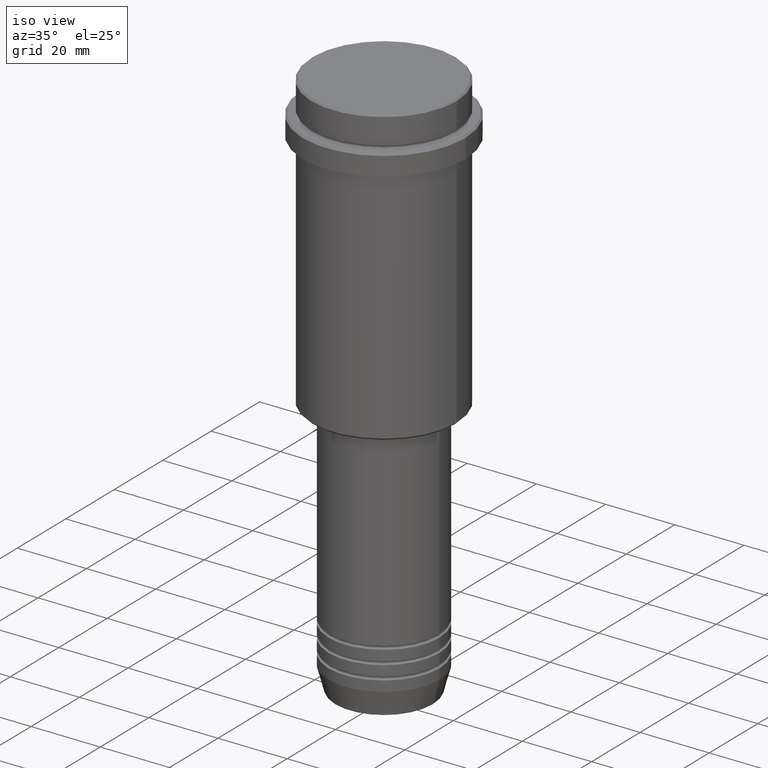
[diagram: clean part render]
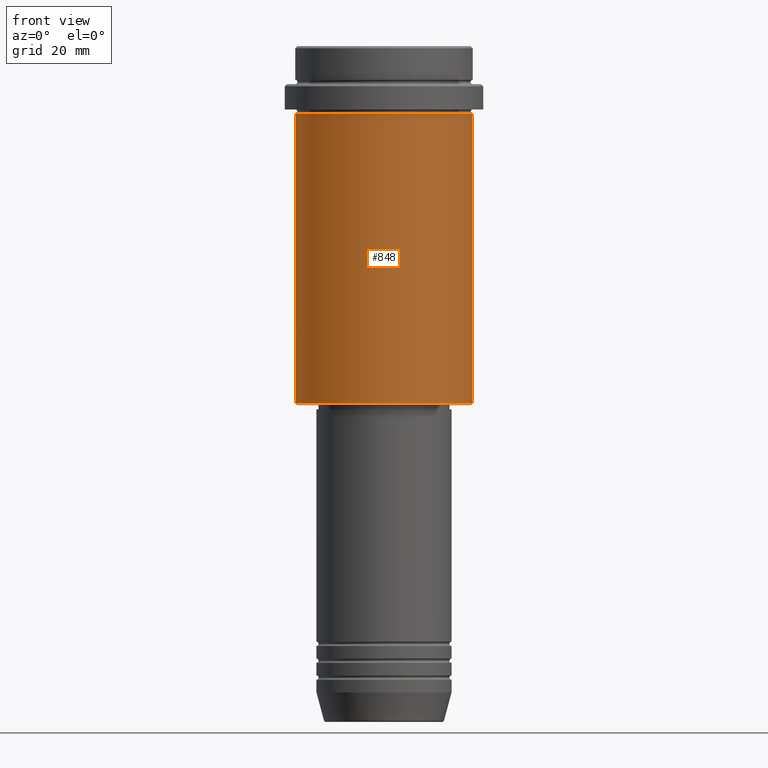
[diagram: tour spotlight — one face highlighted and labeled with its STEP entity id]
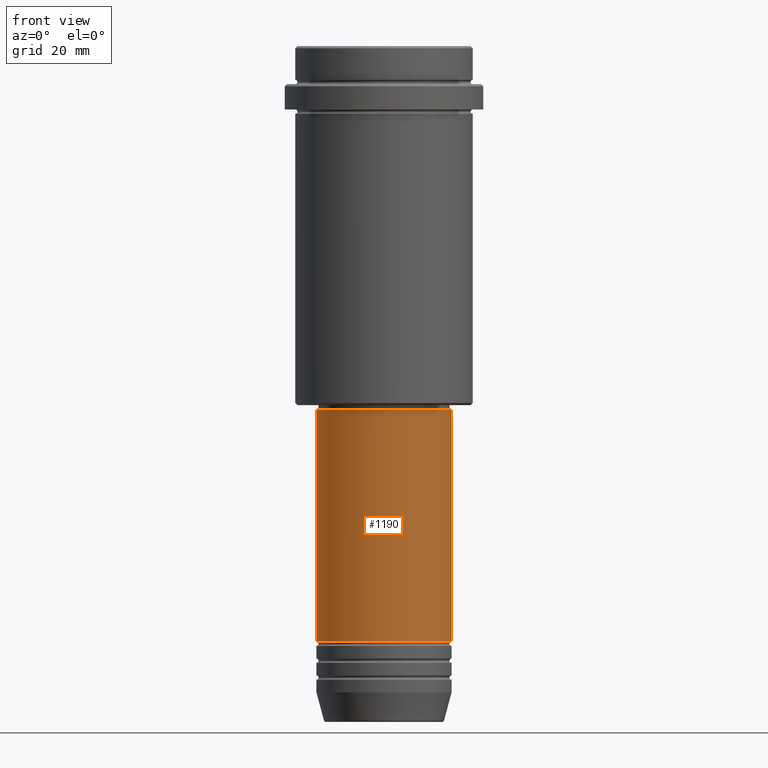
[diagram: tour spotlight — one face highlighted and labeled with its STEP entity id]
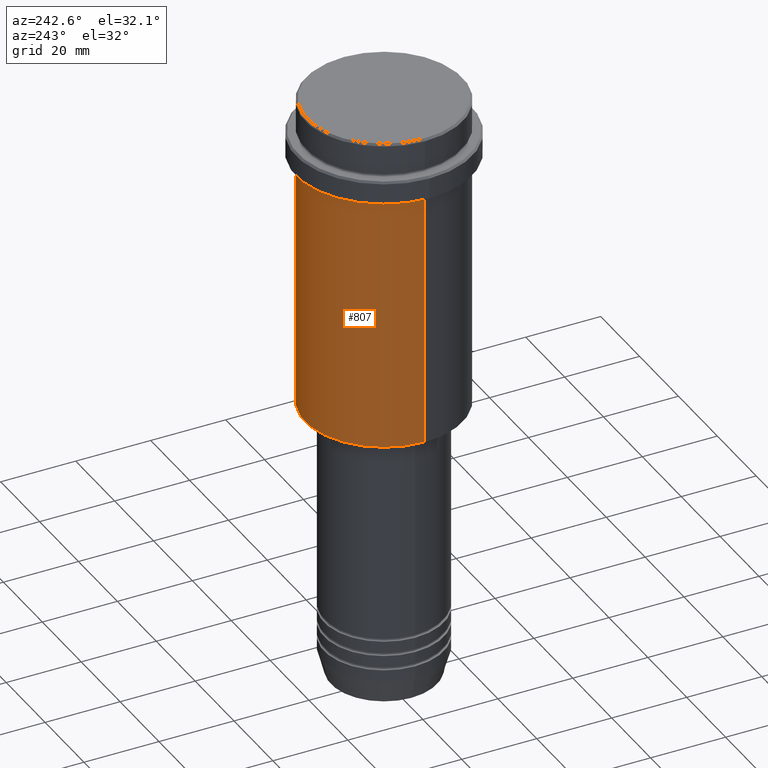
[diagram: tour spotlight — one face highlighted and labeled with its STEP entity id]
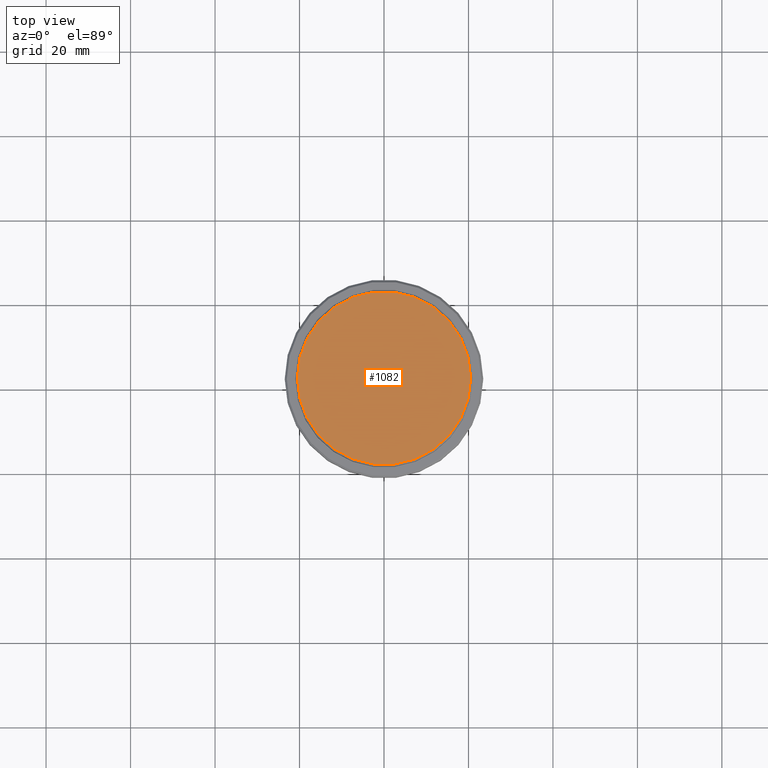
[diagram: tour spotlight — one face highlighted and labeled with its STEP entity id]
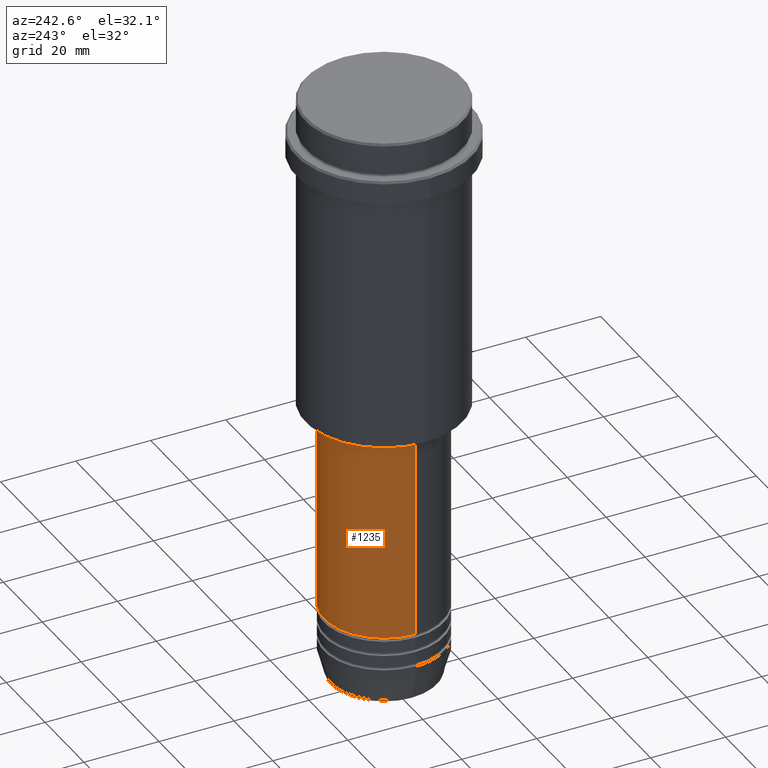
[diagram: tour spotlight — one face highlighted and labeled with its STEP entity id]
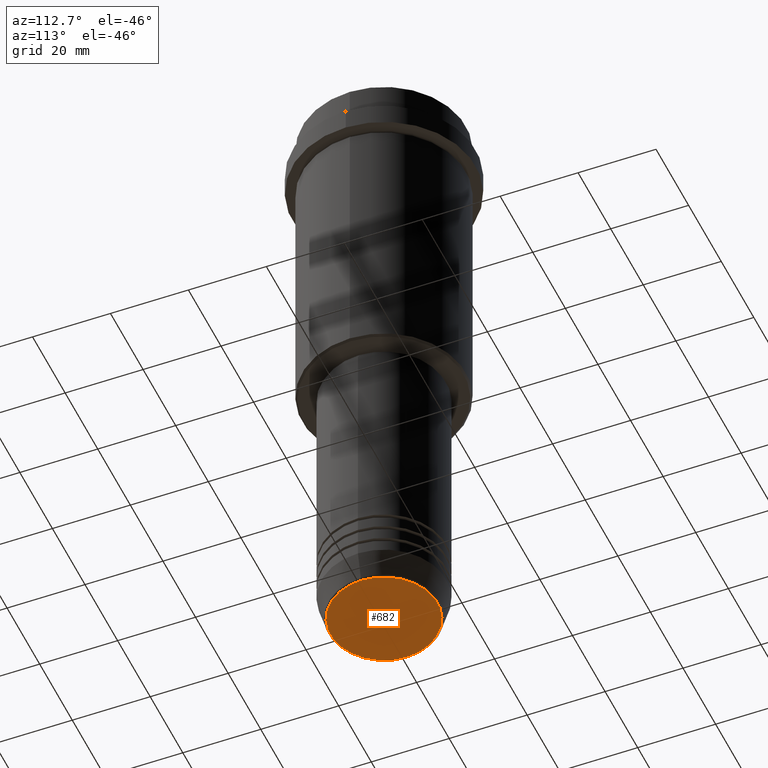
[diagram: tour spotlight — one face highlighted and labeled with its STEP entity id]
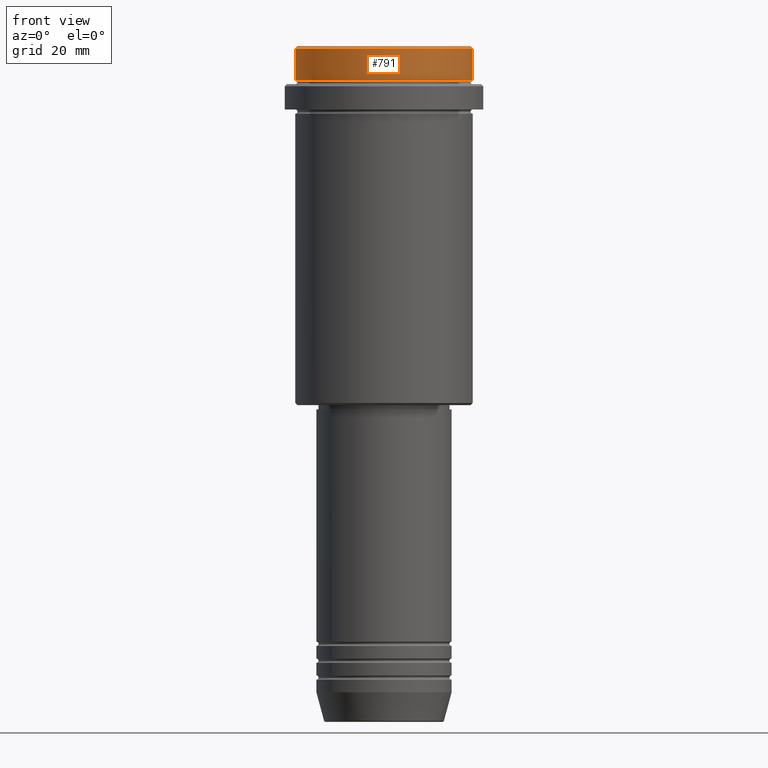
[diagram: tour spotlight — one face highlighted and labeled with its STEP entity id]
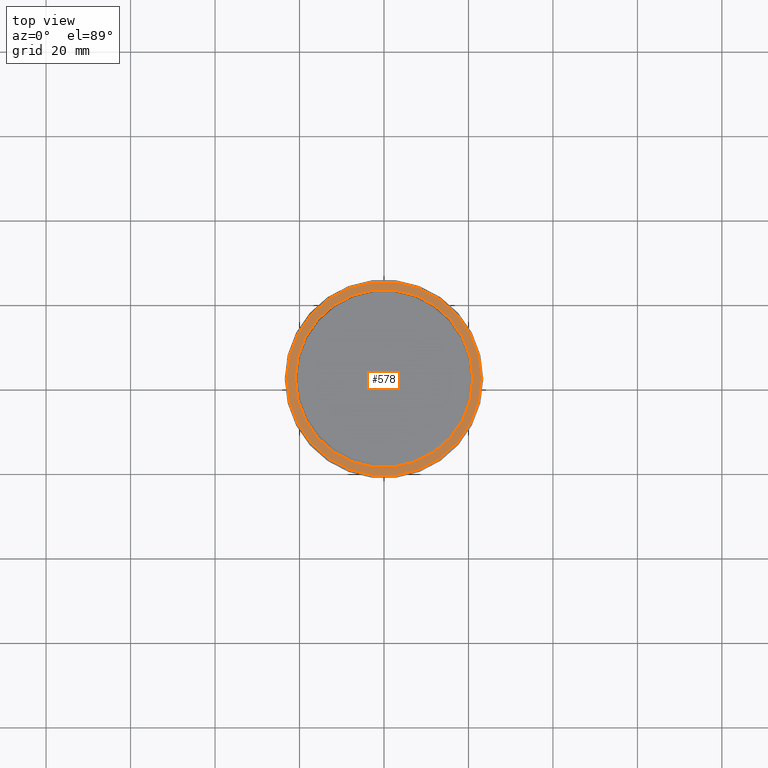
[diagram: tour spotlight — one face highlighted and labeled with its STEP entity id]
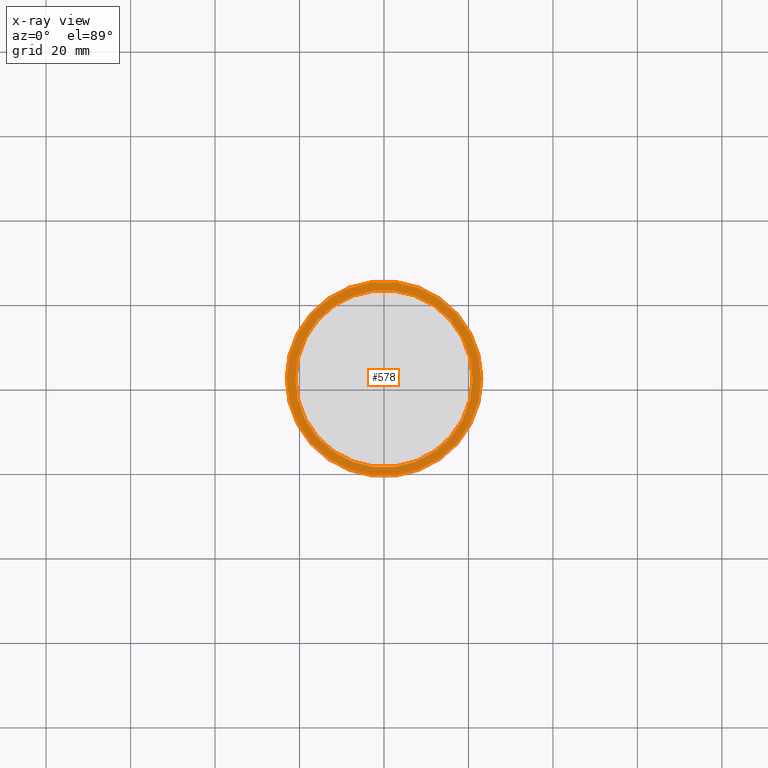
[diagram: x-ray of the same camera — body ghosted, this tour face saturated]
A machine part: a face-by-face anatomy tour. The part has 52 B-rep faces; the first image is the clean iso view, then the 8 largest visible faces are spotlighted one at a time (largest first), each with its STEP entity span.

Face 1 — front view, entity #848. In plain terms, the highlighted cylindrical surface (partial cylindrical patch) has radius 21 mm, axis along (-0, -0, 1).
Definition (entity closure, byte-faithful):
#25 = EDGE_CURVE ( 'NONE', #793, #684, #1074, .T. ) ;
#150 = CIRCLE ( 'NONE', #466, 21.00000000000000000 ) ;
#162 = ORIENTED_EDGE ( 'NONE', *, *, #1260, .F. ) ;
#167 = ORIENTED_EDGE ( 'NONE', *, *, #432, .F. ) ;
#170 = DIRECTION ( 'NONE',  ( -0.000000000000000000, -0.000000000000000000, 1.000000000000000000 ) ) ;
#178 = DIRECTION ( 'NONE',  ( -0.000000000000000000, -0.000000000000000000, 1.000000000000000000 ) ) ;
#199 = DIRECTION ( 'NONE',  ( 1.000000000000000000, 0.000000000000000000, 0.000000000000000000 ) ) ;
#242 = AXIS2_PLACEMENT_3D ( 'NONE', #801, #379, #384 ) ;
#301 = DIRECTION ( 'NONE',  ( -0.000000000000000000, -0.000000000000000000, 1.000000000000000000 ) ) ;
#353 = VECTOR ( 'NONE', #170, 1000.000000000000000 ) ;
#379 = DIRECTION ( 'NONE',  ( -0.000000000000000000, -0.000000000000000000, 1.000000000000000000 ) ) ;
#384 = DIRECTION ( 'NONE',  ( -1.000000000000000000, 0.000000000000000000, 0.000000000000000000 ) ) ;
#403 = DIRECTION ( 'NONE',  ( 1.000000000000000000, 0.000000000000000000, 0.000000000000000000 ) ) ;
#432 = EDGE_CURVE ( 'NONE', #1350, #1030, #526, .T. ) ;
#466 = AXIS2_PLACEMENT_3D ( 'NONE', #1282, #178, #199 ) ;
#522 = CARTESIAN_POINT ( 'NONE',  ( -21.00000000000000000, 2.571758278209441661E-15, -84.50000000000001421 ) ) ;
#526 = LINE ( 'NONE', #1280, #642 ) ;
#642 = VECTOR ( 'NONE', #301, 1000.000000000000000 ) ;
#684 = VERTEX_POINT ( 'NONE', #1331 ) ;
#718 = CARTESIAN_POINT ( 'NONE',  ( 0.000000000000000000, 0.000000000000000000, 0.000000000000000000 ) ) ;
#750 = EDGE_CURVE ( 'NONE', #1350, #793, #1220, .T. ) ;
#793 = VERTEX_POINT ( 'NONE', #1340 ) ;
#794 = EDGE_LOOP ( 'NONE', ( #167, #1270, #1099, #162 ) ) ;
#801 = CARTESIAN_POINT ( 'NONE',  ( 0.000000000000000000, 0.000000000000000000, -84.50000000000001421 ) ) ;
#825 = DIRECTION ( 'NONE',  ( -0.000000000000000000, -0.000000000000000000, 1.000000000000000000 ) ) ;
#829 = AXIS2_PLACEMENT_3D ( 'NONE', #718, #825, #403 ) ;
#848 = ADVANCED_FACE ( 'NONE', ( #940 ), #1185, .T. ) ;
#940 = FACE_OUTER_BOUND ( 'NONE', #794, .T. ) ;
#982 = CARTESIAN_POINT ( 'NONE',  ( -21.00000000000000000, 2.571758278209441661E-15, -16.00000000000000355 ) ) ;
#1030 = VERTEX_POINT ( 'NONE', #982 ) ;
#1074 = LINE ( 'NONE', #1188, #353 ) ;
#1099 = ORIENTED_EDGE ( 'NONE', *, *, #25, .T. ) ;
#1185 = CYLINDRICAL_SURFACE ( 'NONE', #829, 21.00000000000000000 ) ;
#1188 = CARTESIAN_POINT ( 'NONE',  ( 21.00000000000000000, 0.000000000000000000, 0.000000000000000000 ) ) ;
#1220 = CIRCLE ( 'NONE', #242, 21.00000000000000000 ) ;
#1260 = EDGE_CURVE ( 'NONE', #1030, #684, #150, .T. ) ;
#1270 = ORIENTED_EDGE ( 'NONE', *, *, #750, .T. ) ;
#1280 = CARTESIAN_POINT ( 'NONE',  ( -21.00000000000000000, 2.571758278209441661E-15, 0.000000000000000000 ) ) ;
#1282 = CARTESIAN_POINT ( 'NONE',  ( 0.000000000000000000, 0.000000000000000000, -16.00000000000000355 ) ) ;
#1331 = CARTESIAN_POINT ( 'NONE',  ( 21.00000000000000000, 0.000000000000000000, -16.00000000000000355 ) ) ;
#1340 = CARTESIAN_POINT ( 'NONE',  ( 21.00000000000000000, 0.000000000000000000, -84.50000000000001421 ) ) ;
#1350 = VERTEX_POINT ( 'NONE', #522 ) ;

Face 2 — front view, entity #1190. In plain terms, the highlighted cylindrical surface (partial cylindrical patch) has radius 16 mm, axis along (-0, -0, 1).
Definition (entity closure, byte-faithful):
#10 = CIRCLE ( 'NONE', #641, 16.00000000000000000 ) ;
#37 = VECTOR ( 'NONE', #142, 1000.000000000000000 ) ;
#138 = EDGE_CURVE ( 'NONE', #1416, #318, #674, .T. ) ;
#142 = DIRECTION ( 'NONE',  ( -0.000000000000000000, -0.000000000000000000, 1.000000000000000000 ) ) ;
#144 = EDGE_CURVE ( 'NONE', #1416, #1068, #10, .T. ) ;
#147 = CIRCLE ( 'NONE', #1062, 16.00000000000000355 ) ;
#169 = VERTEX_POINT ( 'NONE', #431 ) ;
#195 = AXIS2_PLACEMENT_3D ( 'NONE', #1357, #1256, #253 ) ;
#248 = CARTESIAN_POINT ( 'NONE',  ( 16.00000000000000000, 0.000000000000000000, -140.9999999999999147 ) ) ;
#253 = DIRECTION ( 'NONE',  ( 1.000000000000000000, 0.000000000000000000, 0.000000000000000000 ) ) ;
#302 = EDGE_CURVE ( 'NONE', #318, #169, #147, .T. ) ;
#318 = VERTEX_POINT ( 'NONE', #920 ) ;
#383 = CYLINDRICAL_SURFACE ( 'NONE', #195, 16.00000000000000000 ) ;
#431 = CARTESIAN_POINT ( 'NONE',  ( 16.00000000000000355, 0.000000000000000000, -86.00000000000000000 ) ) ;
#433 = VECTOR ( 'NONE', #560, 1000.000000000000000 ) ;
#497 = DIRECTION ( 'NONE',  ( 1.000000000000000000, 0.000000000000000000, 0.000000000000000000 ) ) ;
#560 = DIRECTION ( 'NONE',  ( -0.000000000000000000, -0.000000000000000000, 1.000000000000000000 ) ) ;
#573 = ORIENTED_EDGE ( 'NONE', *, *, #302, .F. ) ;
#623 = ORIENTED_EDGE ( 'NONE', *, *, #144, .T. ) ;
#641 = AXIS2_PLACEMENT_3D ( 'NONE', #984, #772, #1210 ) ;
#674 = LINE ( 'NONE', #1008, #433 ) ;
#772 = DIRECTION ( 'NONE',  ( -0.000000000000000000, -0.000000000000000000, 1.000000000000000000 ) ) ;
#800 = CARTESIAN_POINT ( 'NONE',  ( 16.00000000000000000, 0.000000000000000000, 0.000000000000000000 ) ) ;
#843 = ORIENTED_EDGE ( 'NONE', *, *, #1158, .T. ) ;
#920 = CARTESIAN_POINT ( 'NONE',  ( -16.00000000000000355, 1.959434878635765526E-15, -86.00000000000000000 ) ) ;
#984 = CARTESIAN_POINT ( 'NONE',  ( 0.000000000000000000, 0.000000000000000000, -140.9999999999999147 ) ) ;
#1008 = CARTESIAN_POINT ( 'NONE',  ( -16.00000000000000000, 1.959434878635765131E-15, 0.000000000000000000 ) ) ;
#1024 = DIRECTION ( 'NONE',  ( -0.000000000000000000, -0.000000000000000000, 1.000000000000000000 ) ) ;
#1032 = LINE ( 'NONE', #800, #37 ) ;
#1062 = AXIS2_PLACEMENT_3D ( 'NONE', #1353, #1024, #497 ) ;
#1068 = VERTEX_POINT ( 'NONE', #248 ) ;
#1073 = EDGE_LOOP ( 'NONE', ( #1396, #623, #843, #573 ) ) ;
#1158 = EDGE_CURVE ( 'NONE', #1068, #169, #1032, .T. ) ;
#1190 = ADVANCED_FACE ( 'NONE', ( #1230 ), #383, .T. ) ;
#1205 = CARTESIAN_POINT ( 'NONE',  ( -16.00000000000000000, 1.959434878635765131E-15, -140.9999999999999147 ) ) ;
#1210 = DIRECTION ( 'NONE',  ( 1.000000000000000000, 0.000000000000000000, 0.000000000000000000 ) ) ;
#1230 = FACE_OUTER_BOUND ( 'NONE', #1073, .T. ) ;
#1256 = DIRECTION ( 'NONE',  ( -0.000000000000000000, -0.000000000000000000, 1.000000000000000000 ) ) ;
#1353 = CARTESIAN_POINT ( 'NONE',  ( 0.000000000000000000, 0.000000000000000000, -86.00000000000000000 ) ) ;
#1357 = CARTESIAN_POINT ( 'NONE',  ( 0.000000000000000000, 0.000000000000000000, 0.000000000000000000 ) ) ;
#1396 = ORIENTED_EDGE ( 'NONE', *, *, #138, .F. ) ;
#1416 = VERTEX_POINT ( 'NONE', #1205 ) ;

Face 3 — auxiliary view, entity #807. In plain terms, the highlighted cylindrical surface (partial cylindrical patch) has radius 21 mm, axis along (-0, -0, 1).
Definition (entity closure, byte-faithful):
#21 = CARTESIAN_POINT ( 'NONE',  ( 0.000000000000000000, 0.000000000000000000, -16.00000000000000355 ) ) ;
#25 = EDGE_CURVE ( 'NONE', #793, #684, #1074, .T. ) ;
#41 = CARTESIAN_POINT ( 'NONE',  ( 0.000000000000000000, 0.000000000000000000, -84.50000000000001421 ) ) ;
#52 = DIRECTION ( 'NONE',  ( -0.000000000000000000, -0.000000000000000000, 1.000000000000000000 ) ) ;
#86 = ORIENTED_EDGE ( 'NONE', *, *, #707, .T. ) ;
#104 = AXIS2_PLACEMENT_3D ( 'NONE', #927, #1021, #814 ) ;
#170 = DIRECTION ( 'NONE',  ( -0.000000000000000000, -0.000000000000000000, 1.000000000000000000 ) ) ;
#190 = CIRCLE ( 'NONE', #1291, 21.00000000000000000 ) ;
#254 = CYLINDRICAL_SURFACE ( 'NONE', #104, 21.00000000000000000 ) ;
#268 = DIRECTION ( 'NONE',  ( -1.000000000000000000, 0.000000000000000000, 0.000000000000000000 ) ) ;
#301 = DIRECTION ( 'NONE',  ( -0.000000000000000000, -0.000000000000000000, 1.000000000000000000 ) ) ;
#353 = VECTOR ( 'NONE', #170, 1000.000000000000000 ) ;
#355 = DIRECTION ( 'NONE',  ( 1.000000000000000000, 0.000000000000000000, 0.000000000000000000 ) ) ;
#394 = CIRCLE ( 'NONE', #1358, 21.00000000000000000 ) ;
#432 = EDGE_CURVE ( 'NONE', #1350, #1030, #526, .T. ) ;
#522 = CARTESIAN_POINT ( 'NONE',  ( -21.00000000000000000, 2.571758278209441661E-15, -84.50000000000001421 ) ) ;
#526 = LINE ( 'NONE', #1280, #642 ) ;
#627 = EDGE_CURVE ( 'NONE', #684, #1030, #394, .T. ) ;
#632 = EDGE_LOOP ( 'NONE', ( #86, #965, #902, #921 ) ) ;
#642 = VECTOR ( 'NONE', #301, 1000.000000000000000 ) ;
#684 = VERTEX_POINT ( 'NONE', #1331 ) ;
#707 = EDGE_CURVE ( 'NONE', #793, #1350, #190, .T. ) ;
#793 = VERTEX_POINT ( 'NONE', #1340 ) ;
#807 = ADVANCED_FACE ( 'NONE', ( #1033 ), #254, .T. ) ;
#814 = DIRECTION ( 'NONE',  ( 1.000000000000000000, 0.000000000000000000, 0.000000000000000000 ) ) ;
#902 = ORIENTED_EDGE ( 'NONE', *, *, #627, .F. ) ;
#921 = ORIENTED_EDGE ( 'NONE', *, *, #25, .F. ) ;
#927 = CARTESIAN_POINT ( 'NONE',  ( 0.000000000000000000, 0.000000000000000000, 0.000000000000000000 ) ) ;
#965 = ORIENTED_EDGE ( 'NONE', *, *, #432, .T. ) ;
#982 = CARTESIAN_POINT ( 'NONE',  ( -21.00000000000000000, 2.571758278209441661E-15, -16.00000000000000355 ) ) ;
#1021 = DIRECTION ( 'NONE',  ( -0.000000000000000000, -0.000000000000000000, 1.000000000000000000 ) ) ;
#1030 = VERTEX_POINT ( 'NONE', #982 ) ;
#1033 = FACE_OUTER_BOUND ( 'NONE', #632, .T. ) ;
#1074 = LINE ( 'NONE', #1188, #353 ) ;
#1095 = DIRECTION ( 'NONE',  ( -0.000000000000000000, -0.000000000000000000, 1.000000000000000000 ) ) ;
#1188 = CARTESIAN_POINT ( 'NONE',  ( 21.00000000000000000, 0.000000000000000000, 0.000000000000000000 ) ) ;
#1280 = CARTESIAN_POINT ( 'NONE',  ( -21.00000000000000000, 2.571758278209441661E-15, 0.000000000000000000 ) ) ;
#1291 = AXIS2_PLACEMENT_3D ( 'NONE', #41, #52, #268 ) ;
#1331 = CARTESIAN_POINT ( 'NONE',  ( 21.00000000000000000, 0.000000000000000000, -16.00000000000000355 ) ) ;
#1340 = CARTESIAN_POINT ( 'NONE',  ( 21.00000000000000000, 0.000000000000000000, -84.50000000000001421 ) ) ;
#1350 = VERTEX_POINT ( 'NONE', #522 ) ;
#1358 = AXIS2_PLACEMENT_3D ( 'NONE', #21, #1095, #355 ) ;

Face 4 — top view, entity #1082. In plain terms, the highlighted planar face has unit normal (0, -0, 1).
Definition (entity closure, byte-faithful):
#31 = CARTESIAN_POINT ( 'NONE',  ( 20.49999999999997513, 2.541142108230756691E-15, 0.000000000000000000 ) ) ;
#102 = AXIS2_PLACEMENT_3D ( 'NONE', #1203, #605, #816 ) ;
#158 = DIRECTION ( 'NONE',  ( 1.000000000000000000, 0.000000000000000000, 0.000000000000000000 ) ) ;
#229 = PLANE ( 'NONE',  #973 ) ;
#251 = EDGE_CURVE ( 'NONE', #446, #1175, #877, .T. ) ;
#263 = AXIS2_PLACEMENT_3D ( 'NONE', #366, #683, #158 ) ;
#344 = DIRECTION ( 'NONE',  ( 0.000000000000000000, -0.000000000000000000, 1.000000000000000000 ) ) ;
#366 = CARTESIAN_POINT ( 'NONE',  ( 0.000000000000000000, 0.000000000000000000, 0.000000000000000000 ) ) ;
#445 = FACE_OUTER_BOUND ( 'NONE', #819, .T. ) ;
#446 = VERTEX_POINT ( 'NONE', #1290 ) ;
#533 = CARTESIAN_POINT ( 'NONE',  ( 0.000000000000000000, 0.000000000000000000, 0.000000000000000000 ) ) ;
#605 = DIRECTION ( 'NONE',  ( -0.000000000000000000, -0.000000000000000000, 1.000000000000000000 ) ) ;
#683 = DIRECTION ( 'NONE',  ( -0.000000000000000000, -0.000000000000000000, 1.000000000000000000 ) ) ;
#723 = ORIENTED_EDGE ( 'NONE', *, *, #779, .T. ) ;
#779 = EDGE_CURVE ( 'NONE', #1175, #446, #1335, .T. ) ;
#816 = DIRECTION ( 'NONE',  ( 1.000000000000000000, 0.000000000000000000, 0.000000000000000000 ) ) ;
#819 = EDGE_LOOP ( 'NONE', ( #1277, #723 ) ) ;
#877 = CIRCLE ( 'NONE', #102, 20.49999999999997513 ) ;
#973 = AXIS2_PLACEMENT_3D ( 'NONE', #533, #344, #1303 ) ;
#1082 = ADVANCED_FACE ( 'NONE', ( #445 ), #229, .T. ) ;
#1175 = VERTEX_POINT ( 'NONE', #31 ) ;
#1203 = CARTESIAN_POINT ( 'NONE',  ( 0.000000000000000000, 0.000000000000000000, 0.000000000000000000 ) ) ;
#1277 = ORIENTED_EDGE ( 'NONE', *, *, #251, .T. ) ;
#1290 = CARTESIAN_POINT ( 'NONE',  ( -20.49999999999997513, 0.000000000000000000, 0.000000000000000000 ) ) ;
#1303 = DIRECTION ( 'NONE',  ( 1.000000000000000000, 0.000000000000000000, 0.000000000000000000 ) ) ;
#1335 = CIRCLE ( 'NONE', #263, 20.49999999999997513 ) ;

Face 5 — auxiliary view, entity #1235. In plain terms, the highlighted cylindrical surface (partial cylindrical patch) has radius 16 mm, axis along (-0, -0, 1).
Definition (entity closure, byte-faithful):
#37 = VECTOR ( 'NONE', #142, 1000.000000000000000 ) ;
#55 = AXIS2_PLACEMENT_3D ( 'NONE', #1333, #335, #790 ) ;
#138 = EDGE_CURVE ( 'NONE', #1416, #318, #674, .T. ) ;
#142 = DIRECTION ( 'NONE',  ( -0.000000000000000000, -0.000000000000000000, 1.000000000000000000 ) ) ;
#152 = FACE_OUTER_BOUND ( 'NONE', #1224, .T. ) ;
#169 = VERTEX_POINT ( 'NONE', #431 ) ;
#225 = EDGE_CURVE ( 'NONE', #169, #318, #1354, .T. ) ;
#248 = CARTESIAN_POINT ( 'NONE',  ( 16.00000000000000000, 0.000000000000000000, -140.9999999999999147 ) ) ;
#255 = CARTESIAN_POINT ( 'NONE',  ( 0.000000000000000000, 0.000000000000000000, -140.9999999999999147 ) ) ;
#318 = VERTEX_POINT ( 'NONE', #920 ) ;
#326 = EDGE_CURVE ( 'NONE', #1068, #1416, #529, .T. ) ;
#335 = DIRECTION ( 'NONE',  ( -0.000000000000000000, -0.000000000000000000, 1.000000000000000000 ) ) ;
#430 = ORIENTED_EDGE ( 'NONE', *, *, #1158, .F. ) ;
#431 = CARTESIAN_POINT ( 'NONE',  ( 16.00000000000000355, 0.000000000000000000, -86.00000000000000000 ) ) ;
#433 = VECTOR ( 'NONE', #560, 1000.000000000000000 ) ;
#457 = ORIENTED_EDGE ( 'NONE', *, *, #138, .T. ) ;
#482 = DIRECTION ( 'NONE',  ( 1.000000000000000000, 0.000000000000000000, 0.000000000000000000 ) ) ;
#494 = ORIENTED_EDGE ( 'NONE', *, *, #326, .T. ) ;
#529 = CIRCLE ( 'NONE', #1403, 16.00000000000000000 ) ;
#560 = DIRECTION ( 'NONE',  ( -0.000000000000000000, -0.000000000000000000, 1.000000000000000000 ) ) ;
#574 = DIRECTION ( 'NONE',  ( 1.000000000000000000, 0.000000000000000000, 0.000000000000000000 ) ) ;
#593 = CYLINDRICAL_SURFACE ( 'NONE', #811, 16.00000000000000000 ) ;
#674 = LINE ( 'NONE', #1008, #433 ) ;
#790 = DIRECTION ( 'NONE',  ( 1.000000000000000000, 0.000000000000000000, 0.000000000000000000 ) ) ;
#800 = CARTESIAN_POINT ( 'NONE',  ( 16.00000000000000000, 0.000000000000000000, 0.000000000000000000 ) ) ;
#811 = AXIS2_PLACEMENT_3D ( 'NONE', #1365, #918, #574 ) ;
#918 = DIRECTION ( 'NONE',  ( -0.000000000000000000, -0.000000000000000000, 1.000000000000000000 ) ) ;
#920 = CARTESIAN_POINT ( 'NONE',  ( -16.00000000000000355, 1.959434878635765526E-15, -86.00000000000000000 ) ) ;
#941 = DIRECTION ( 'NONE',  ( -0.000000000000000000, -0.000000000000000000, 1.000000000000000000 ) ) ;
#987 = ORIENTED_EDGE ( 'NONE', *, *, #225, .F. ) ;
#1008 = CARTESIAN_POINT ( 'NONE',  ( -16.00000000000000000, 1.959434878635765131E-15, 0.000000000000000000 ) ) ;
#1032 = LINE ( 'NONE', #800, #37 ) ;
#1068 = VERTEX_POINT ( 'NONE', #248 ) ;
#1158 = EDGE_CURVE ( 'NONE', #1068, #169, #1032, .T. ) ;
#1205 = CARTESIAN_POINT ( 'NONE',  ( -16.00000000000000000, 1.959434878635765131E-15, -140.9999999999999147 ) ) ;
#1224 = EDGE_LOOP ( 'NONE', ( #494, #457, #987, #430 ) ) ;
#1235 = ADVANCED_FACE ( 'NONE', ( #152 ), #593, .T. ) ;
#1333 = CARTESIAN_POINT ( 'NONE',  ( 0.000000000000000000, 0.000000000000000000, -86.00000000000000000 ) ) ;
#1354 = CIRCLE ( 'NONE', #55, 16.00000000000000355 ) ;
#1365 = CARTESIAN_POINT ( 'NONE',  ( 0.000000000000000000, 0.000000000000000000, 0.000000000000000000 ) ) ;
#1403 = AXIS2_PLACEMENT_3D ( 'NONE', #255, #941, #482 ) ;
#1416 = VERTEX_POINT ( 'NONE', #1205 ) ;

Face 6 — auxiliary view, entity #682. In plain terms, the highlighted planar face has unit normal (0, -0, 1).
Definition (entity closure, byte-faithful):
#26 = FACE_OUTER_BOUND ( 'NONE', #746, .T. ) ;
#59 = CARTESIAN_POINT ( 'NONE',  ( 0.000000000000000000, 0.000000000000000000, -160.0000000000000000 ) ) ;
#64 = DIRECTION ( 'NONE',  ( 0.000000000000000000, 0.000000000000000000, -1.000000000000000000 ) ) ;
#157 = DIRECTION ( 'NONE',  ( 1.000000000000000000, 0.000000000000000000, 0.000000000000000000 ) ) ;
#159 = CARTESIAN_POINT ( 'NONE',  ( 0.000000000000000000, 0.000000000000000000, -160.0000000000000000 ) ) ;
#184 = VERTEX_POINT ( 'NONE', #874 ) ;
#217 = CARTESIAN_POINT ( 'NONE',  ( 13.74069215899265828, 0.000000000000000000, -160.0000000000000000 ) ) ;
#224 = DIRECTION ( 'NONE',  ( 1.000000000000000000, 0.000000000000000000, 0.000000000000000000 ) ) ;
#380 = EDGE_CURVE ( 'NONE', #184, #633, #1262, .T. ) ;
#453 = PLANE ( 'NONE',  #645 ) ;
#563 = ORIENTED_EDGE ( 'NONE', *, *, #1147, .T. ) ;
#571 = DIRECTION ( 'NONE',  ( 0.000000000000000000, -0.000000000000000000, 1.000000000000000000 ) ) ;
#633 = VERTEX_POINT ( 'NONE', #217 ) ;
#645 = AXIS2_PLACEMENT_3D ( 'NONE', #898, #571, #224 ) ;
#682 = ADVANCED_FACE ( 'NONE', ( #26 ), #453, .F. ) ;
#703 = ORIENTED_EDGE ( 'NONE', *, *, #380, .T. ) ;
#746 = EDGE_LOOP ( 'NONE', ( #563, #703 ) ) ;
#874 = CARTESIAN_POINT ( 'NONE',  ( -13.74069215899265828, 1.712322416342415986E-15, -160.0000000000000000 ) ) ;
#898 = CARTESIAN_POINT ( 'NONE',  ( 0.000000000000000000, 0.000000000000000000, -160.0000000000000000 ) ) ;
#906 = CIRCLE ( 'NONE', #1267, 13.74069215899265828 ) ;
#1026 = DIRECTION ( 'NONE',  ( 0.000000000000000000, 0.000000000000000000, -1.000000000000000000 ) ) ;
#1044 = DIRECTION ( 'NONE',  ( 1.000000000000000000, 0.000000000000000000, 0.000000000000000000 ) ) ;
#1131 = AXIS2_PLACEMENT_3D ( 'NONE', #159, #64, #1044 ) ;
#1147 = EDGE_CURVE ( 'NONE', #633, #184, #906, .T. ) ;
#1262 = CIRCLE ( 'NONE', #1131, 13.74069215899265828 ) ;
#1267 = AXIS2_PLACEMENT_3D ( 'NONE', #59, #1026, #157 ) ;

Face 7 — front view, entity #791. In plain terms, the highlighted cylindrical surface (partial cylindrical patch) has radius 21 mm, axis along (-0, -0, 1).
Definition (entity closure, byte-faithful):
#71 = ORIENTED_EDGE ( 'NONE', *, *, #833, .F. ) ;
#72 = CARTESIAN_POINT ( 'NONE',  ( 0.000000000000000000, 0.000000000000000000, -0.5000000000000386358 ) ) ;
#130 = ORIENTED_EDGE ( 'NONE', *, *, #503, .T. ) ;
#143 = FACE_OUTER_BOUND ( 'NONE', #314, .T. ) ;
#182 = DIRECTION ( 'NONE',  ( -0.000000000000000000, -0.000000000000000000, 1.000000000000000000 ) ) ;
#187 = DIRECTION ( 'NONE',  ( -0.000000000000000000, -0.000000000000000000, 1.000000000000000000 ) ) ;
#216 = CIRCLE ( 'NONE', #240, 21.00000000000000000 ) ;
#240 = AXIS2_PLACEMENT_3D ( 'NONE', #72, #722, #966 ) ;
#259 = CARTESIAN_POINT ( 'NONE',  ( -21.00000000000000000, 2.571758278209441661E-15, 0.000000000000000000 ) ) ;
#314 = EDGE_LOOP ( 'NONE', ( #71, #130, #541, #1184 ) ) ;
#356 = AXIS2_PLACEMENT_3D ( 'NONE', #474, #796, #1236 ) ;
#411 = CIRCLE ( 'NONE', #1016, 21.00000000000000000 ) ;
#461 = CYLINDRICAL_SURFACE ( 'NONE', #356, 21.00000000000000000 ) ;
#462 = VERTEX_POINT ( 'NONE', #947 ) ;
#471 = EDGE_CURVE ( 'NONE', #937, #1410, #1414, .T. ) ;
#474 = CARTESIAN_POINT ( 'NONE',  ( 0.000000000000000000, 0.000000000000000000, 0.000000000000000000 ) ) ;
#478 = VERTEX_POINT ( 'NONE', #1268 ) ;
#488 = LINE ( 'NONE', #259, #530 ) ;
#500 = CARTESIAN_POINT ( 'NONE',  ( 21.00000000000000000, 0.000000000000000000, -7.999999999999998224 ) ) ;
#503 = EDGE_CURVE ( 'NONE', #462, #937, #411, .T. ) ;
#530 = VECTOR ( 'NONE', #690, 1000.000000000000000 ) ;
#541 = ORIENTED_EDGE ( 'NONE', *, *, #471, .T. ) ;
#690 = DIRECTION ( 'NONE',  ( -0.000000000000000000, -0.000000000000000000, 1.000000000000000000 ) ) ;
#722 = DIRECTION ( 'NONE',  ( 0.000000000000000000, 0.000000000000000000, -1.000000000000000000 ) ) ;
#725 = DIRECTION ( 'NONE',  ( 1.000000000000000000, 0.000000000000000000, 0.000000000000000000 ) ) ;
#791 = ADVANCED_FACE ( 'NONE', ( #143 ), #461, .T. ) ;
#796 = DIRECTION ( 'NONE',  ( -0.000000000000000000, -0.000000000000000000, 1.000000000000000000 ) ) ;
#833 = EDGE_CURVE ( 'NONE', #462, #478, #488, .T. ) ;
#863 = EDGE_CURVE ( 'NONE', #1410, #478, #216, .T. ) ;
#937 = VERTEX_POINT ( 'NONE', #500 ) ;
#947 = CARTESIAN_POINT ( 'NONE',  ( -21.00000000000000000, 2.571758278209441661E-15, -7.999999999999998224 ) ) ;
#966 = DIRECTION ( 'NONE',  ( 1.000000000000000000, 0.000000000000000000, 0.000000000000000000 ) ) ;
#1016 = AXIS2_PLACEMENT_3D ( 'NONE', #1187, #187, #725 ) ;
#1040 = VECTOR ( 'NONE', #182, 1000.000000000000000 ) ;
#1183 = CARTESIAN_POINT ( 'NONE',  ( 21.00000000000000000, 0.000000000000000000, -0.5000000000000386358 ) ) ;
#1184 = ORIENTED_EDGE ( 'NONE', *, *, #863, .T. ) ;
#1187 = CARTESIAN_POINT ( 'NONE',  ( 0.000000000000000000, 0.000000000000000000, -7.999999999999998224 ) ) ;
#1236 = DIRECTION ( 'NONE',  ( 1.000000000000000000, 0.000000000000000000, 0.000000000000000000 ) ) ;
#1268 = CARTESIAN_POINT ( 'NONE',  ( -21.00000000000000000, 2.571758278209441661E-15, -0.5000000000000386358 ) ) ;
#1385 = CARTESIAN_POINT ( 'NONE',  ( 21.00000000000000000, 0.000000000000000000, 0.000000000000000000 ) ) ;
#1410 = VERTEX_POINT ( 'NONE', #1183 ) ;
#1414 = LINE ( 'NONE', #1385, #1040 ) ;

Face 8 — top view, entity #578. An x-ray twin of the same camera follows (body ghosted, this face saturated) — the face is partly hidden behind the body. In plain terms, the highlighted planar face has unit normal (0, -0, 1).
Definition (entity closure, byte-faithful):
#57 = AXIS2_PLACEMENT_3D ( 'NONE', #589, #936, #1368 ) ;
#78 = CIRCLE ( 'NONE', #57, 20.99999999999999289 ) ;
#89 = VERTEX_POINT ( 'NONE', #1103 ) ;
#91 = ORIENTED_EDGE ( 'NONE', *, *, #300, .T. ) ;
#94 = DIRECTION ( 'NONE',  ( -0.000000000000000000, -0.000000000000000000, 1.000000000000000000 ) ) ;
#124 = FACE_BOUND ( 'NONE', #191, .T. ) ;
#132 = FACE_OUTER_BOUND ( 'NONE', #1344, .T. ) ;
#141 = ORIENTED_EDGE ( 'NONE', *, *, #1317, .T. ) ;
#183 = DIRECTION ( 'NONE',  ( 1.000000000000000000, 0.000000000000000000, 0.000000000000000000 ) ) ;
#191 = EDGE_LOOP ( 'NONE', ( #91, #1305 ) ) ;
#219 = CIRCLE ( 'NONE', #999, 22.99999999999999645 ) ;
#238 = DIRECTION ( 'NONE',  ( 0.000000000000000000, -0.000000000000000000, 1.000000000000000000 ) ) ;
#300 = EDGE_CURVE ( 'NONE', #752, #472, #437, .T. ) ;
#322 = DIRECTION ( 'NONE',  ( 1.000000000000000000, 0.000000000000000000, 0.000000000000000000 ) ) ;
#385 = EDGE_CURVE ( 'NONE', #472, #752, #78, .T. ) ;
#404 = CARTESIAN_POINT ( 'NONE',  ( -20.99999999999999289, 2.571758278209440872E-15, -9.000000000000000000 ) ) ;
#437 = CIRCLE ( 'NONE', #1312, 20.99999999999999289 ) ;
#472 = VERTEX_POINT ( 'NONE', #404 ) ;
#491 = DIRECTION ( 'NONE',  ( 0.000000000000000000, 0.000000000000000000, -1.000000000000000000 ) ) ;
#520 = ORIENTED_EDGE ( 'NONE', *, *, #602, .T. ) ;
#558 = DIRECTION ( 'NONE',  ( 1.000000000000000000, 0.000000000000000000, 0.000000000000000000 ) ) ;
#578 = ADVANCED_FACE ( 'NONE', ( #132, #124 ), #652, .T. ) ;
#589 = CARTESIAN_POINT ( 'NONE',  ( 0.000000000000000000, 0.000000000000000000, -9.000000000000000000 ) ) ;
#596 = CARTESIAN_POINT ( 'NONE',  ( 0.000000000000000000, 0.000000000000000000, -9.000000000000000000 ) ) ;
#602 = EDGE_CURVE ( 'NONE', #89, #637, #786, .T. ) ;
#637 = VERTEX_POINT ( 'NONE', #1202 ) ;
#652 = PLANE ( 'NONE',  #1195 ) ;
#662 = CARTESIAN_POINT ( 'NONE',  ( 0.000000000000000000, 0.000000000000000000, -9.000000000000000000 ) ) ;
#694 = DIRECTION ( 'NONE',  ( 1.000000000000000000, 0.000000000000000000, 0.000000000000000000 ) ) ;
#698 = CARTESIAN_POINT ( 'NONE',  ( 20.99999999999999289, 0.000000000000000000, -9.000000000000000000 ) ) ;
#752 = VERTEX_POINT ( 'NONE', #698 ) ;
#786 = CIRCLE ( 'NONE', #1151, 22.99999999999999645 ) ;
#868 = CARTESIAN_POINT ( 'NONE',  ( 0.000000000000000000, 20.49999999999999645, -9.000000000000000000 ) ) ;
#936 = DIRECTION ( 'NONE',  ( 0.000000000000000000, 0.000000000000000000, -1.000000000000000000 ) ) ;
#989 = DIRECTION ( 'NONE',  ( -0.000000000000000000, -0.000000000000000000, 1.000000000000000000 ) ) ;
#999 = AXIS2_PLACEMENT_3D ( 'NONE', #1276, #94, #183 ) ;
#1103 = CARTESIAN_POINT ( 'NONE',  ( -22.99999999999999645, 0.000000000000000000, -9.000000000000000000 ) ) ;
#1151 = AXIS2_PLACEMENT_3D ( 'NONE', #662, #989, #322 ) ;
#1195 = AXIS2_PLACEMENT_3D ( 'NONE', #868, #238, #558 ) ;
#1202 = CARTESIAN_POINT ( 'NONE',  ( 22.99999999999999645, 2.847303808017596139E-15, -9.000000000000000000 ) ) ;
#1276 = CARTESIAN_POINT ( 'NONE',  ( 0.000000000000000000, 0.000000000000000000, -9.000000000000000000 ) ) ;
#1305 = ORIENTED_EDGE ( 'NONE', *, *, #385, .T. ) ;
#1312 = AXIS2_PLACEMENT_3D ( 'NONE', #596, #491, #694 ) ;
#1317 = EDGE_CURVE ( 'NONE', #637, #89, #219, .T. ) ;
#1344 = EDGE_LOOP ( 'NONE', ( #520, #141 ) ) ;
#1368 = DIRECTION ( 'NONE',  ( 1.000000000000000000, 0.000000000000000000, 0.000000000000000000 ) ) ;